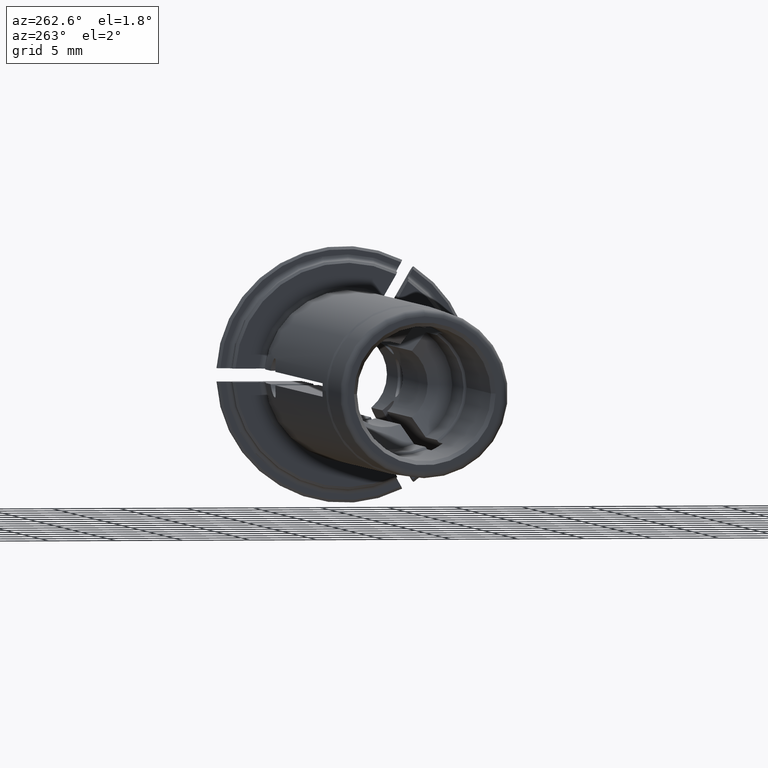
[diagram: clean part render]
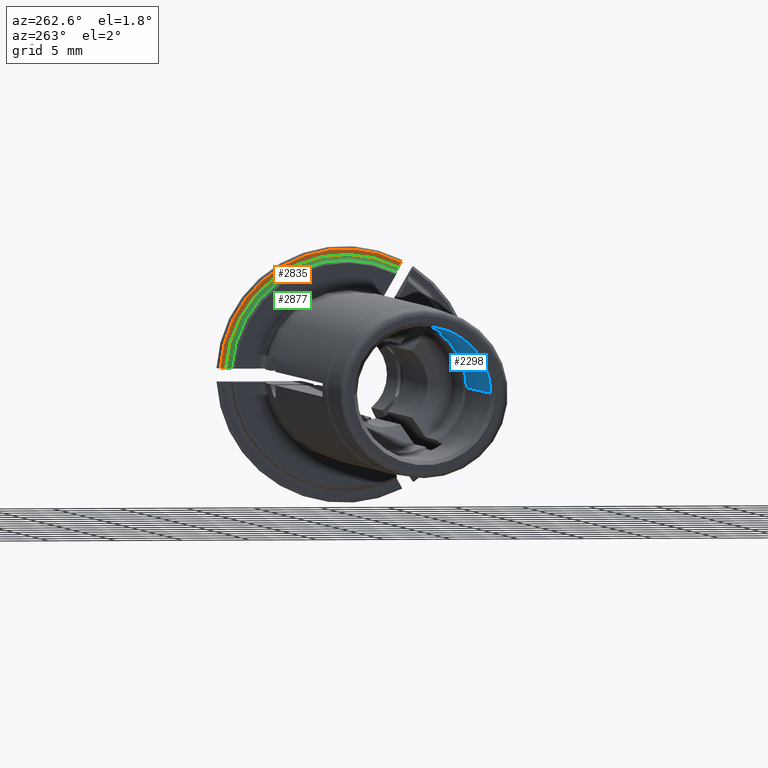
[diagram: same view with three faces highlighted in distinct colors, each labeled with its STEP entity id]
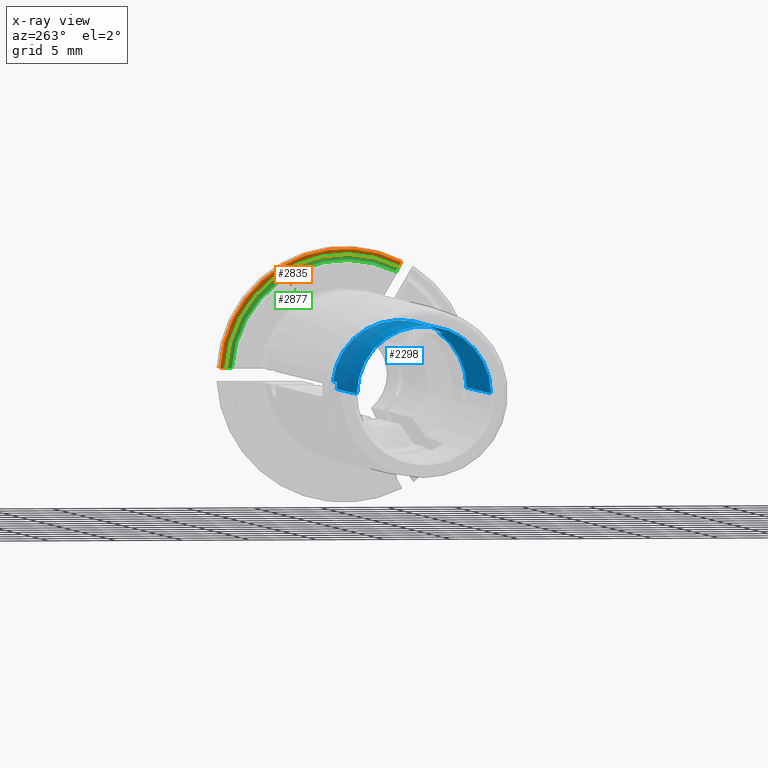
[diagram: x-ray of the same camera — body ghosted, the three highlighted faces saturated]
A machine part, auxiliary view with three faces highlighted in distinct colors.
The next image is the same camera in x-ray (body ghosted, the three faces saturated) — at least one of them is partly hidden behind the body in this view.
Their STEP definitions:

[orange] entity #2835 — the highlighted planar face has unit normal (1, 0, 0).
#799=CARTESIAN_POINT('',(1.E0,0.E0,0.E0));
#800=DIRECTION('',(-1.E0,0.E0,0.E0));
#801=DIRECTION('',(0.E0,-4.527163445812E-1,8.916545919520E-1));
#802=AXIS2_PLACEMENT_3D('',#799,#800,#801);
#864=DIRECTION('',(0.E0,5.E-1,-8.660254037844E-1));
#865=VECTOR('',#864,4.006054563859E-1);
#866=CARTESIAN_POINT('',(1.E0,-4.210262004605E0,8.292387705153E0));
#867=LINE('',#866,#865);
#868=DIRECTION('',(0.E0,-1.E0,0.E0));
#869=VECTOR('',#868,4.006054563859E-1);
#870=CARTESIAN_POINT('',(1.E0,9.286549412995E0,5.E-1));
#871=LINE('',#870,#869);
#915=CARTESIAN_POINT('',(1.E0,0.E0,0.E0));
#916=DIRECTION('',(1.E0,0.E0,0.E0));
#917=DIRECTION('',(0.E0,9.984206692819E-1,5.617977528090E-2));
#918=AXIS2_PLACEMENT_3D('',#915,#916,#917);
#1776=CARTESIAN_POINT('',(1.E0,9.286549412995E0,5.E-1));
#1777=CARTESIAN_POINT('',(1.E0,8.885943956609E0,5.E-1));
#1778=VERTEX_POINT('',#1776);
#1779=VERTEX_POINT('',#1777);
#1877=CARTESIAN_POINT('',(1.E0,-4.210262004605E0,8.292387705153E0));
#1878=CARTESIAN_POINT('',(1.E0,-4.009959276412E0,7.945453203028E0));
#1879=VERTEX_POINT('',#1877);
#1880=VERTEX_POINT('',#1878);
#2822=CARTESIAN_POINT('',(1.E0,0.E0,0.E0));
#2823=DIRECTION('',(1.E0,0.E0,0.E0));
#2824=DIRECTION('',(0.E0,-1.E0,0.E0));
#2825=AXIS2_PLACEMENT_3D('',#2822,#2823,#2824);
#2826=PLANE('',#2825);
#2827=ORIENTED_EDGE('',*,*,#2134,.T.);
#2829=ORIENTED_EDGE('',*,*,#2828,.F.);
#2831=ORIENTED_EDGE('',*,*,#2830,.F.);
#2832=ORIENTED_EDGE('',*,*,#2786,.F.);
#2833=EDGE_LOOP('',(#2827,#2829,#2831,#2832));
#2834=FACE_OUTER_BOUND('',#2833,.F.);
#2835=ADVANCED_FACE('',(#2834),#2826,.F.);
#803=CIRCLE('',#802,9.3E0);
#919=CIRCLE('',#918,8.9E0);
#2134=EDGE_CURVE('',#1879,#1880,#867,.T.);
#2786=EDGE_CURVE('',#1879,#1778,#803,.T.);
#2828=EDGE_CURVE('',#1779,#1880,#919,.T.);
#2830=EDGE_CURVE('',#1778,#1779,#871,.T.);

[blue] entity #2298 — the highlighted cylindrical surface (partial cylindrical patch) has radius 5 mm, axis along (-1, 0, 0).
#137=DIRECTION('',(-1.E0,0.E0,0.E0));
#138=VECTOR('',#137,2.311752067708E0);
#139=CARTESIAN_POINT('',(-3.05E1,-2.054455890874E0,4.558421984904E0));
#140=LINE('',#139,#138);
#141=CARTESIAN_POINT('',(-3.05E1,0.E0,0.E0));
#142=DIRECTION('',(1.E0,0.E0,0.E0));
#143=DIRECTION('',(0.E0,9.949874371066E-1,1.E-1));
#144=AXIS2_PLACEMENT_3D('',#141,#142,#143);
#146=DIRECTION('',(-1.E0,0.E0,0.E0));
#147=VECTOR('',#146,2.311752067708E0);
#148=CARTESIAN_POINT('',(-3.05E1,4.974937185533E0,5.E-1));
#149=LINE('',#148,#147);
#150=CARTESIAN_POINT('',(-3.285647024893E1,5.E0,1.636468738297E-13));
#151=CARTESIAN_POINT('',(-3.285647024893E1,5.E0,5.508179563893E-2));
#152=CARTESIAN_POINT('',(-3.285323543480E1,4.998183775848E0,1.656301039826E-1));
#153=CARTESIAN_POINT('',(-3.283837044982E1,4.989843550383E0,3.329213395153E-1));
#154=CARTESIAN_POINT('',(-3.282175633806E1,4.980535210491E0,4.443003549432E-1));
#155=CARTESIAN_POINT('',(-3.281175206771E1,4.974937185533E0,5.E-1));
#157=DIRECTION('',(-1.E0,-7.344542059438E-11,-3.171230424677E-10));
#158=VECTOR('',#157,1.164352974958E1);
#159=CARTESIAN_POINT('',(-3.285647024893E1,5.E0,1.636468738297E-13));
#160=LINE('',#159,#158);
#161=CARTESIAN_POINT('',(-4.45E1,0.E0,0.E0));
#162=DIRECTION('',(1.E0,0.E0,0.E0));
#163=DIRECTION('',(0.E0,1.E0,0.E0));
#164=AXIS2_PLACEMENT_3D('',#161,#162,#163);
#166=DIRECTION('',(-1.E0,6.108313855371E-11,2.637334997871E-10));
#167=VECTOR('',#166,1.399999999852E1);
#168=CARTESIAN_POINT('',(-3.05E1,-5.E0,0.E0));
#169=LINE('',#168,#167);
#170=CARTESIAN_POINT('',(-3.05E1,0.E0,0.E0));
#171=DIRECTION('',(1.E0,0.E0,0.E0));
#172=DIRECTION('',(0.E0,-5.840962589318E-1,8.116843969807E-1));
#173=AXIS2_PLACEMENT_3D('',#170,#171,#172);
#175=DIRECTION('',(-1.E0,0.E0,0.E0));
#176=VECTOR('',#175,2.311752067708E0);
#177=CARTESIAN_POINT('',(-3.05E1,-2.920481294659E0,4.058421984904E0));
#178=LINE('',#177,#176);
#179=CARTESIAN_POINT('',(-3.281175206771E1,-2.054455890874E0,4.558421984904E0));
#180=CARTESIAN_POINT('',(-3.283146272267E1,-2.155008880720E0,4.513103301592E0));
#181=CARTESIAN_POINT('',(-3.285804927670E1,-2.353738977523E0,4.415593324267E0));
#182=CARTESIAN_POINT('',(-3.285814617617E1,-2.646091820047E0,4.246866223884E0));
#183=CARTESIAN_POINT('',(-3.283155689968E1,-2.830529927080E0,4.123151894070E0));
#184=CARTESIAN_POINT('',(-3.281175206771E1,-2.920481294659E0,4.058421984904E0));
#1615=CARTESIAN_POINT('',(-3.285647024893E1,5.E0,1.636468738297E-13));
#1792=VERTEX_POINT('',#1615);
#1797=CARTESIAN_POINT('',(-3.05E1,4.974937185533E0,5.E-1));
#1798=CARTESIAN_POINT('',(-3.281175206771E1,4.974937185533E0,5.E-1));
#1799=VERTEX_POINT('',#1797);
#1800=VERTEX_POINT('',#1798);
#1893=CARTESIAN_POINT('',(-3.05E1,-2.054455890874E0,4.558421984904E0));
#1894=CARTESIAN_POINT('',(-3.281175206771E1,-2.054455890874E0,
4.558421984904E0));
#1895=VERTEX_POINT('',#1893);
#1896=VERTEX_POINT('',#1894);
#1897=CARTESIAN_POINT('',(-3.05E1,-2.920481294659E0,4.058421984904E0));
#1898=CARTESIAN_POINT('',(-3.281175206771E1,-2.920481294659E0,
4.058421984904E0));
#1899=VERTEX_POINT('',#1897);
#1900=VERTEX_POINT('',#1898);
#1921=CARTESIAN_POINT('',(-3.05E1,-5.E0,0.E0));
#1922=VERTEX_POINT('',#1921);
#2045=CARTESIAN_POINT('',(-4.45E1,5.E0,0.E0));
#2046=CARTESIAN_POINT('',(-4.45E1,-5.E0,0.E0));
#2047=VERTEX_POINT('',#2045);
#2048=VERTEX_POINT('',#2046);
#2274=CARTESIAN_POINT('',(-1.77E1,0.E0,0.E0));
#2275=DIRECTION('',(-1.E0,0.E0,0.E0));
#2276=DIRECTION('',(0.E0,1.E0,0.E0));
#2277=AXIS2_PLACEMENT_3D('',#2274,#2275,#2276);
#2278=CYLINDRICAL_SURFACE('',#2277,5.E0);
#2279=ORIENTED_EDGE('',*,*,#2107,.F.);
#2281=ORIENTED_EDGE('',*,*,#2280,.F.);
#2283=ORIENTED_EDGE('',*,*,#2282,.T.);
#2285=ORIENTED_EDGE('',*,*,#2284,.F.);
#2287=ORIENTED_EDGE('',*,*,#2286,.T.);
#2289=ORIENTED_EDGE('',*,*,#2288,.T.);
#2291=ORIENTED_EDGE('',*,*,#2290,.F.);
#2293=ORIENTED_EDGE('',*,*,#2292,.F.);
#2294=ORIENTED_EDGE('',*,*,#2207,.T.);
#2295=ORIENTED_EDGE('',*,*,#2268,.F.);
#2296=EDGE_LOOP('',(#2279,#2281,#2283,#2285,#2287,#2289,#2291,#2293,#2294,
#2295));
#2297=FACE_OUTER_BOUND('',#2296,.F.);
#2298=ADVANCED_FACE('',(#2297),#2278,.F.);
#145=CIRCLE('',#144,5.E0);
#156=B_SPLINE_CURVE_WITH_KNOTS('',3,(#150,#151,#152,#153,#154,#155),
.UNSPECIFIED.,.F.,.F.,(4,1,1,4),(0.E0,3.333333333333E-1,6.666666666667E-1,1.E0),
.UNSPECIFIED.);
#165=CIRCLE('',#164,5.E0);
#174=CIRCLE('',#173,5.E0);
#185=B_SPLINE_CURVE_WITH_KNOTS('',3,(#179,#180,#181,#182,#183,#184),
.UNSPECIFIED.,.F.,.F.,(4,1,1,4),(0.E0,3.333333333333E-1,6.666666666667E-1,1.E0),
.UNSPECIFIED.);
#2107=EDGE_CURVE('',#1895,#1896,#140,.T.);
#2207=EDGE_CURVE('',#1899,#1900,#178,.T.);
#2268=EDGE_CURVE('',#1896,#1900,#185,.T.);
#2280=EDGE_CURVE('',#1799,#1895,#145,.T.);
#2282=EDGE_CURVE('',#1799,#1800,#149,.T.);
#2284=EDGE_CURVE('',#1792,#1800,#156,.T.);
#2286=EDGE_CURVE('',#1792,#2047,#160,.T.);
#2288=EDGE_CURVE('',#2047,#2048,#165,.T.);
#2290=EDGE_CURVE('',#1922,#2048,#169,.T.);
#2292=EDGE_CURVE('',#1899,#1922,#174,.T.);

[green] entity #2877 — the highlighted toroidal blend (fillet) surface has major radius 8.9 mm and minor (blend) radius 0.4 mm.
#888=CARTESIAN_POINT('',(6.E-1,-3.809627985227E0,7.598469228350E0));
#889=CARTESIAN_POINT('',(6.303801897232E-1,-3.809627985227E0,7.598469228350E0));
#890=CARTESIAN_POINT('',(6.894627523808E-1,-3.812995591057E0,7.604302092746E0));
#891=CARTESIAN_POINT('',(7.751250845661E-1,-3.827953110686E0,7.630209276700E0));
#892=CARTESIAN_POINT('',(8.516133866213E-1,-3.852064050496E0,7.671970649468E0));
#893=CARTESIAN_POINT('',(9.154983092802E-1,-3.884090579755E0,7.727442225336E0));
#894=CARTESIAN_POINT('',(9.635350444226E-1,-3.922392636677E0,7.793783333959E0));
#895=CARTESIAN_POINT('',(9.932983351387E-1,-3.965230489599E0,7.867980671707E0));
#896=CARTESIAN_POINT('',(1.E0,-3.994772373036E0,7.919148714771E0));
#897=CARTESIAN_POINT('',(1.E0,-4.009959276412E0,7.945453203028E0));
#899=CARTESIAN_POINT('',(6.E-1,0.E0,0.E0));
#900=DIRECTION('',(-1.E0,0.E0,0.E0));
#901=DIRECTION('',(0.E0,-4.481915276738E-1,8.939375562764E-1));
#902=AXIS2_PLACEMENT_3D('',#899,#900,#901);
#904=CARTESIAN_POINT('',(1.E0,8.885943956609E0,5.E-1));
#905=CARTESIAN_POINT('',(1.E0,8.855560927432E0,5.E-1));
#906=CARTESIAN_POINT('',(9.932948866357E-1,8.796459564860E0,5.E-1));
#907=CARTESIAN_POINT('',(9.635087372055E-1,8.710749622586E0,5.E-1));
#908=CARTESIAN_POINT('',(9.154423060324E-1,8.634134628114E0,5.E-1));
#909=CARTESIAN_POINT('',(8.515413243993E-1,8.570097043380E0,5.E-1));
#910=CARTESIAN_POINT('',(7.750631099834E-1,8.521904723544E0,5.E-1));
#911=CARTESIAN_POINT('',(6.894352009451E-1,8.492012996979E0,5.E-1));
#912=CARTESIAN_POINT('',(6.303706536806E-1,8.485281374239E0,5.E-1));
#913=CARTESIAN_POINT('',(6.E-1,8.485281374239E0,5.E-1));
#915=CARTESIAN_POINT('',(1.E0,0.E0,0.E0));
#916=DIRECTION('',(1.E0,0.E0,0.E0));
#917=DIRECTION('',(0.E0,9.984206692819E-1,5.617977528090E-2));
#918=AXIS2_PLACEMENT_3D('',#915,#916,#917);
#1769=CARTESIAN_POINT('',(6.E-1,8.485281374239E0,5.E-1));
#1771=VERTEX_POINT('',#1769);
#1777=CARTESIAN_POINT('',(1.E0,8.885943956609E0,5.E-1));
#1779=VERTEX_POINT('',#1777);
#1870=CARTESIAN_POINT('',(6.E-1,-3.809627985227E0,7.598469228350E0));
#1872=VERTEX_POINT('',#1870);
#1878=CARTESIAN_POINT('',(1.E0,-4.009959276412E0,7.945453203028E0));
#1880=VERTEX_POINT('',#1878);
#2864=CARTESIAN_POINT('',(6.E-1,0.E0,0.E0));
#2865=DIRECTION('',(1.E0,0.E0,0.E0));
#2866=DIRECTION('',(0.E0,-9.999032030042E-1,-1.391346908065E-2));
#2867=AXIS2_PLACEMENT_3D('',#2864,#2865,#2866);
#2868=TOROIDAL_SURFACE('',#2867,8.9E0,4.E-1);
#2869=ORIENTED_EDGE('',*,*,#2132,.F.);
#2871=ORIENTED_EDGE('',*,*,#2870,.T.);
#2873=ORIENTED_EDGE('',*,*,#2872,.F.);
#2874=ORIENTED_EDGE('',*,*,#2828,.T.);
#2875=EDGE_LOOP('',(#2869,#2871,#2873,#2874));
#2876=FACE_OUTER_BOUND('',#2875,.F.);
#2877=ADVANCED_FACE('',(#2876),#2868,.F.);
#898=B_SPLINE_CURVE_WITH_KNOTS('',3,(#888,#889,#890,#891,#892,#893,#894,#895,
#896,#897),.UNSPECIFIED.,.F.,.F.,(4,1,1,1,1,1,1,4),(0.E0,1.428571428571E-1,
2.857142857143E-1,4.285714285714E-1,5.714285714286E-1,7.142857142857E-1,
8.571428571429E-1,1.E0),.UNSPECIFIED.);
#903=CIRCLE('',#902,8.5E0);
#914=B_SPLINE_CURVE_WITH_KNOTS('',3,(#904,#905,#906,#907,#908,#909,#910,#911,
#912,#913),.UNSPECIFIED.,.F.,.F.,(4,1,1,1,1,1,1,4),(0.E0,1.428571428571E-1,
2.857142857143E-1,4.285714285714E-1,5.714285714286E-1,7.142857142857E-1,
8.571428571429E-1,1.E0),.UNSPECIFIED.);
#919=CIRCLE('',#918,8.9E0);
#2132=EDGE_CURVE('',#1872,#1880,#898,.T.);
#2828=EDGE_CURVE('',#1779,#1880,#919,.T.);
#2870=EDGE_CURVE('',#1872,#1771,#903,.T.);
#2872=EDGE_CURVE('',#1779,#1771,#914,.T.);